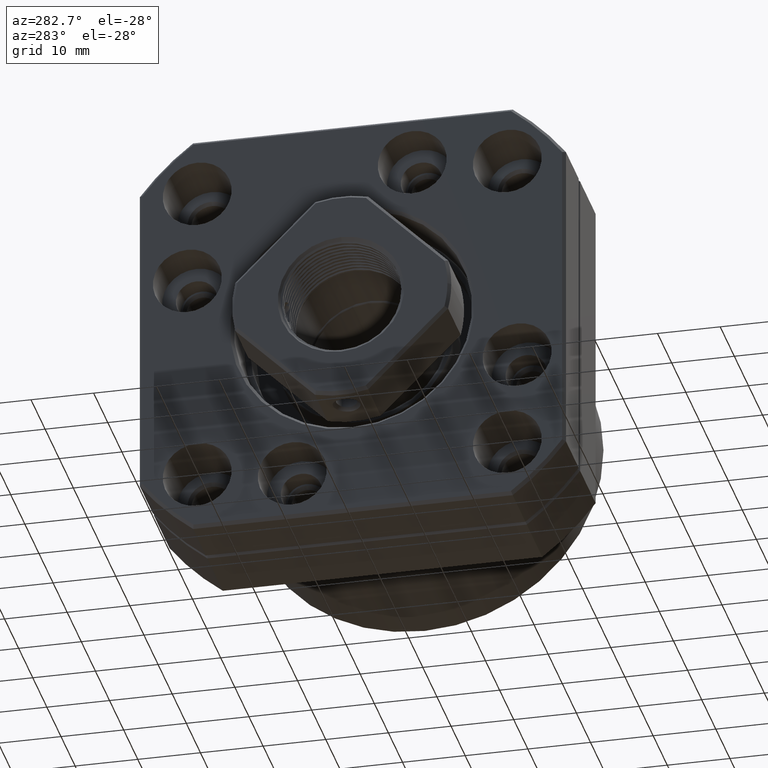
[diagram: clean part render]
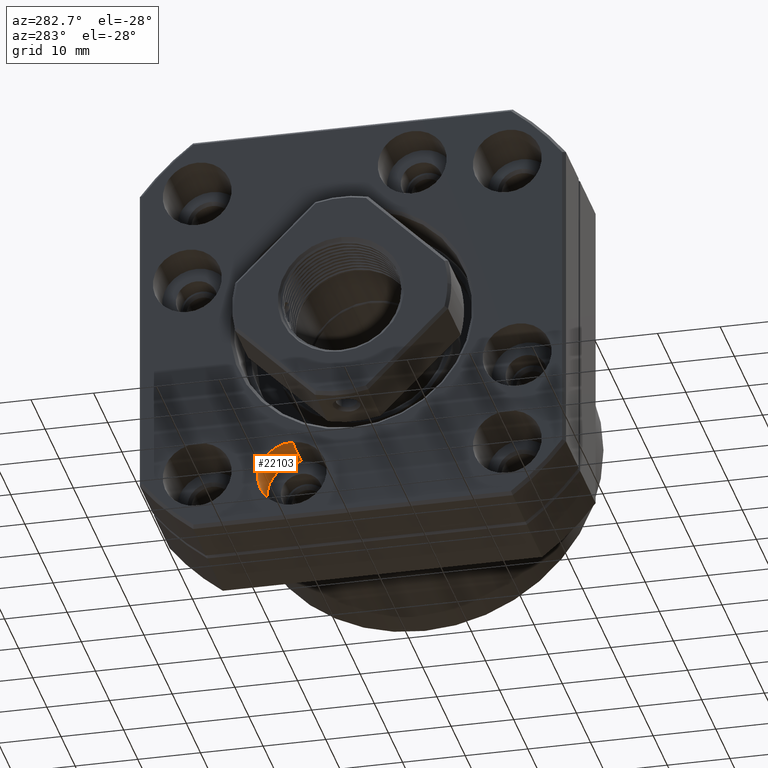
[diagram: same view with one face highlighted and labeled with its STEP entity id]
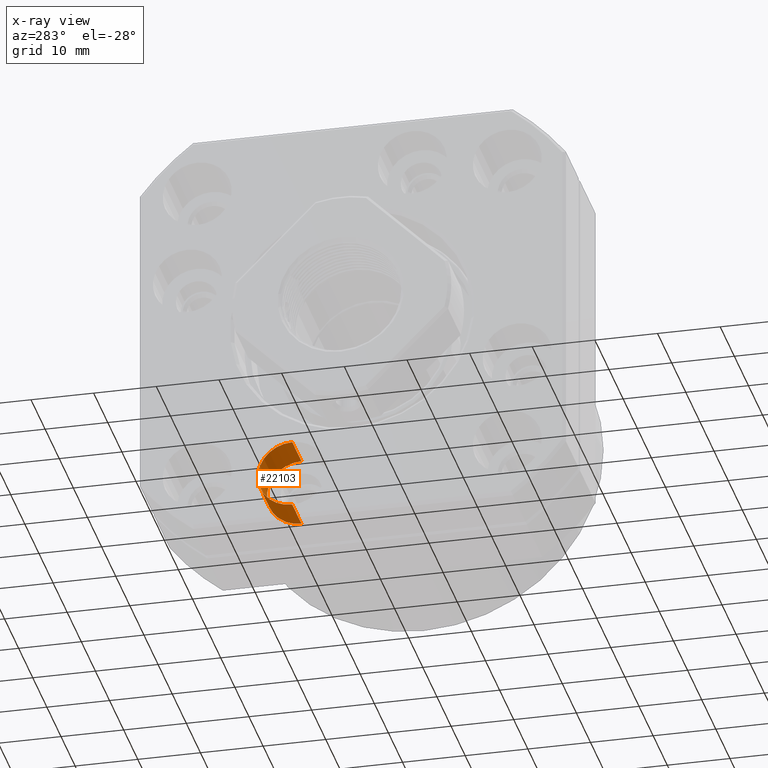
[diagram: x-ray of the same camera — body ghosted, the highlighted face saturated]
A machine part, auxiliary view. The second image highlights one B-rep face of the part: STEP entity #22103.
The next image is the same camera in x-ray: the body ghosted, the highlighted face saturated — about 0% of this face is hidden behind the body in this view.
In plain terms, the highlighted cylindrical surface (edge-blend (fillet) strip) has radius 5.5 mm, axis along (-1, 0, 0).
Its self-contained STEP definition (entity closure, byte-faithful):
#5526 = DIRECTION ( 'NONE',  ( -1.000000000000000000, 0.0000000000000000000, 0.0000000000000000000 ) ) ;
#5527 = VECTOR ( 'NONE', #5526, 1000.000000000000000 ) ;
#5528 = CARTESIAN_POINT ( 'NONE',  ( -9.999999999999998200, 9.576564013118739300, -31.81139338200541300 ) ) ;
#5529 = LINE ( 'NONE', #5528, #5527 ) ;
#5579 = DIRECTION ( 'NONE',  ( -1.000000000000000000, 0.0000000000000000000, 0.0000000000000000000 ) ) ;
#5580 = VECTOR ( 'NONE', #5579, 1000.000000000000000 ) ;
#5581 = CARTESIAN_POINT ( 'NONE',  ( -9.999999999999998200, 9.576564013118739300, -20.81139338200541600 ) ) ;
#5582 = LINE ( 'NONE', #5581, #5580 ) ;
#5583 = CARTESIAN_POINT ( 'NONE',  ( -9.999999999999998200, 9.576564013118739300, -20.81139338200541600 ) ) ;
#5597 = CARTESIAN_POINT ( 'NONE',  ( -9.999999999999998200, 9.576564013118739300, -31.81139338200541300 ) ) ;
#5598 = CARTESIAN_POINT ( 'NONE',  ( -3.499999999999997800, 9.576564013118739300, -20.81139338200541600 ) ) ;
#5599 = CARTESIAN_POINT ( 'NONE',  ( -3.499999999999997800, 9.576564013118739300, -31.81139338200541300 ) ) ;
#5878 = CIRCLE ( 'NONE', #5935, 5.499999999999998200 ) ;
#5932 = DIRECTION ( 'NONE',  ( 0.0000000000000000000, 0.0000000000000000000, 1.000000000000000000 ) ) ;
#5933 = DIRECTION ( 'NONE',  ( -1.000000000000000000, 0.0000000000000000000, 0.0000000000000000000 ) ) ;
#5934 = CARTESIAN_POINT ( 'NONE',  ( -9.999999999999998200, 9.576564013118739300, -26.31139338200541600 ) ) ;
#5935 = AXIS2_PLACEMENT_3D ( 'NONE', #5934, #5933, #5932 ) ;
#7111 = DIRECTION ( 'NONE',  ( 0.0000000000000000000, 0.0000000000000000000, 1.000000000000000000 ) ) ;
#7112 = DIRECTION ( 'NONE',  ( -1.000000000000000000, 0.0000000000000000000, 0.0000000000000000000 ) ) ;
#7113 = CARTESIAN_POINT ( 'NONE',  ( -3.499999999999997800, 9.576564013118739300, -26.31139338200541600 ) ) ;
#7114 = AXIS2_PLACEMENT_3D ( 'NONE', #7113, #7112, #7111 ) ;
#7115 = CIRCLE ( 'NONE', #7114, 5.499999999999998200 ) ;
#7120 = DIRECTION ( 'NONE',  ( 0.0000000000000000000, 0.0000000000000000000, 1.000000000000000000 ) ) ;
#7121 = DIRECTION ( 'NONE',  ( -1.000000000000000000, 0.0000000000000000000, 0.0000000000000000000 ) ) ;
#7122 = CARTESIAN_POINT ( 'NONE',  ( -9.999999999999998200, 9.576564013118739300, -26.31139338200541600 ) ) ;
#7123 = AXIS2_PLACEMENT_3D ( 'NONE', #7122, #7121, #7120 ) ;
#7124 = CYLINDRICAL_SURFACE ( 'NONE', #7123, 5.499999999999998200 ) ;
#7128 = FACE_OUTER_BOUND ( 'NONE', #22102, .T. ) ;
#10938 = EDGE_CURVE ( 'NONE', #10965, #10968, #5529, .T. ) ;
#10941 = VERTEX_POINT ( 'NONE', #5583 ) ;
#10943 = EDGE_CURVE ( 'NONE', #10966, #10941, #5582, .T. ) ;
#10965 = VERTEX_POINT ( 'NONE', #5599 ) ;
#10966 = VERTEX_POINT ( 'NONE', #5598 ) ;
#10968 = VERTEX_POINT ( 'NONE', #5597 ) ;
#11130 = EDGE_CURVE ( 'NONE', #10941, #10968, #5878, .T. ) ;
#22102 = EDGE_LOOP ( 'NONE', ( #22104, #22164, #22163, #22167 ) ) ;
#22103 = ADVANCED_FACE ( 'NONE', ( #7128 ), #7124, .F. ) ;
#22104 = ORIENTED_EDGE ( 'NONE', *, *, #10938, .F. ) ;
#22108 = EDGE_CURVE ( 'NONE', #10966, #10965, #7115, .T. ) ;
#22163 = ORIENTED_EDGE ( 'NONE', *, *, #10943, .T. ) ;
#22164 = ORIENTED_EDGE ( 'NONE', *, *, #22108, .F. ) ;
#22167 = ORIENTED_EDGE ( 'NONE', *, *, #11130, .T. ) ;